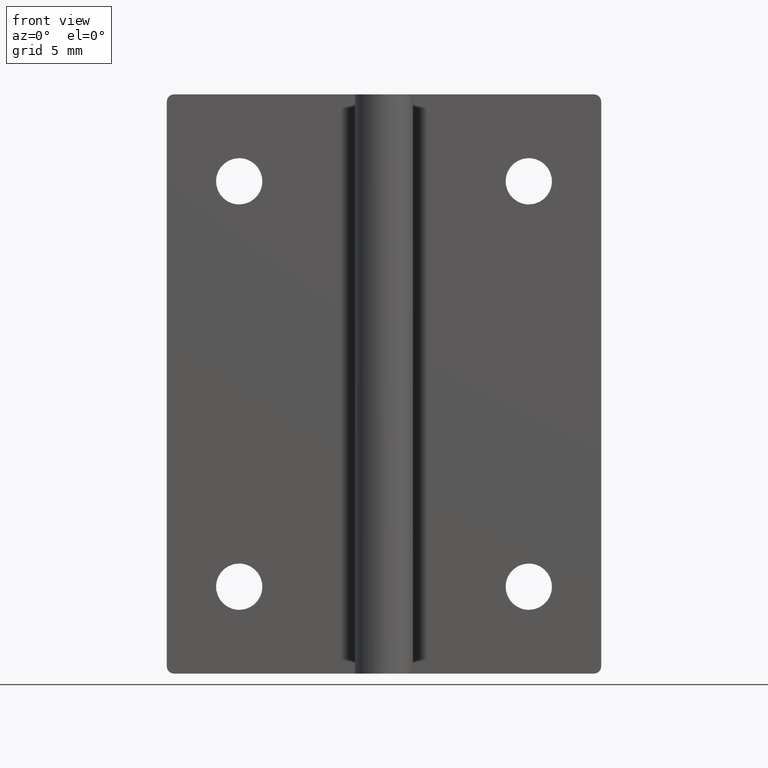
[diagram: clean part render]
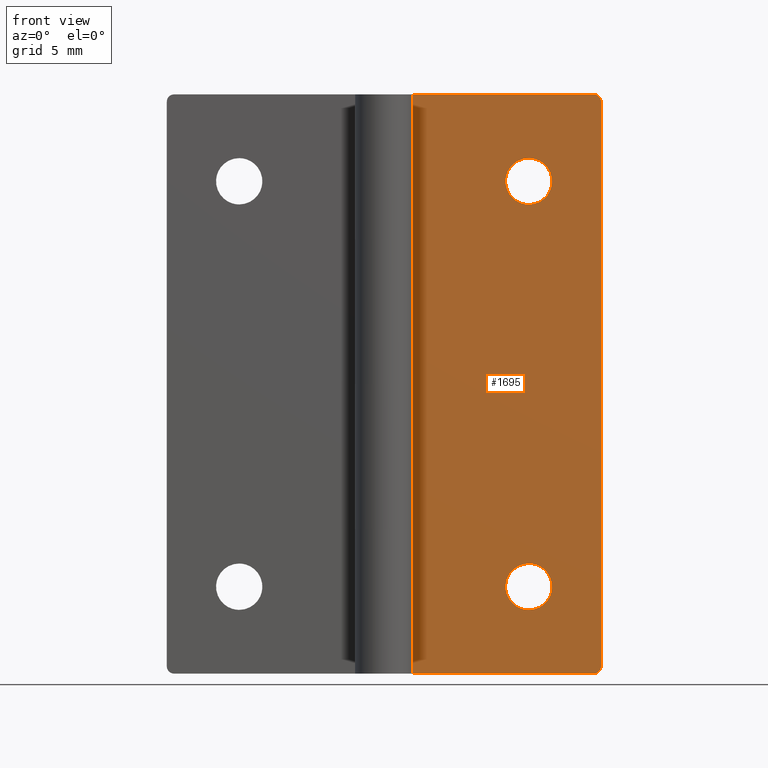
[diagram: same view with one face highlighted and labeled with its STEP entity id]
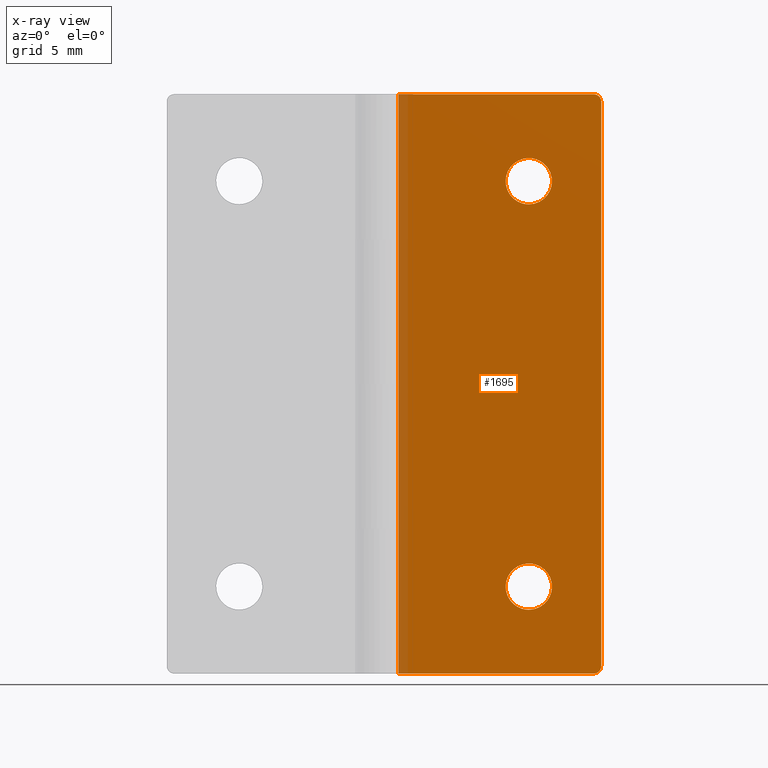
[diagram: x-ray of the same camera — body ghosted, the highlighted face saturated]
A machine part, front view. The second image highlights one B-rep face of the part: STEP entity #1695.
The next image is the same camera in x-ray: the body ghosted, the highlighted face saturated — about 5% of this face is hidden behind the body in this view.
In plain terms, the highlighted face is a freeform B-spline surface patch.
Its self-contained STEP definition (entity closure, byte-faithful):
#313=CARTESIAN_POINT('',(10.0,4.200000999999955,35.600008000000003));
#314=VERTEX_POINT('',#313);
#315=CARTESIAN_POINT('',(8.404932266027803,4.200000999999955,34.125542553174803));
#316=VERTEX_POINT('',#315);
#317=CARTESIAN_POINT('',(10.0,4.200000999999955,35.600008000000003));
#318=CARTESIAN_POINT('',(8.520975213365935,4.200000999999955,35.600007999999995));
#319=CARTESIAN_POINT('',(8.404932266027803,4.200000999999956,34.125542553174803));
#327=(BOUNDED_CURVE()B_SPLINE_CURVE(2,(#317,#318,#319),.UNSPECIFIED.,.F.,.U.)B_SPLINE_CURVE_WITH_KNOTS((3,3),(0.0,0.236331300630564),.UNSPECIFIED.)CURVE()GEOMETRIC_REPRESENTATION_ITEM()RATIONAL_B_SPLINE_CURVE((1.0,0.723120658607778,0.969723356167218))REPRESENTATION_ITEM(''));
#328=EDGE_CURVE('',#314,#316,#327,.T.);
#369=CARTESIAN_POINT('',(11.595067733972201,4.200000999999955,33.874473446825213));
#370=VERTEX_POINT('',#369);
#376=CARTESIAN_POINT('',(11.595067733972201,4.200000999999955,33.874473446825206));
#377=CARTESIAN_POINT('',(11.600000000000000,4.200000999999955,33.937143828777430));
#378=CARTESIAN_POINT('',(11.600000000000000,4.200000999999955,34.000008000000001));
#379=CARTESIAN_POINT('',(11.600000000000001,4.200000999999955,35.600007999999995));
#380=CARTESIAN_POINT('',(10.0,4.200000999999955,35.600008000000003));
#388=(BOUNDED_CURVE()B_SPLINE_CURVE(2,(#376,#377,#378,#379,#380),.UNSPECIFIED.,.F.,.U.)B_SPLINE_CURVE_WITH_KNOTS((3,2,3),(0.736331300630565,0.750000000000000,1.0),.UNSPECIFIED.)CURVE()GEOMETRIC_REPRESENTATION_ITEM()RATIONAL_B_SPLINE_CURVE((0.969723356167220,0.983986122578771,1.0,0.707106781186548,1.0))REPRESENTATION_ITEM(''));
#389=EDGE_CURVE('',#370,#314,#388,.T.);
#412=CARTESIAN_POINT('',(10.0,4.200000999999955,32.400008000000000));
#413=VERTEX_POINT('',#412);
#414=CARTESIAN_POINT('',(8.404932266027803,4.200000999999956,34.125542553174803));
#415=CARTESIAN_POINT('',(8.400000000000000,4.200000999999955,34.062872171222573));
#416=CARTESIAN_POINT('',(8.400000000000000,4.200000999999955,34.000008000000001));
#417=CARTESIAN_POINT('',(8.400000000000000,4.200000999999955,32.400008000000000));
#418=CARTESIAN_POINT('',(10.0,4.200000999999955,32.400008000000000));
#426=(BOUNDED_CURVE()B_SPLINE_CURVE(2,(#414,#415,#416,#417,#418),.UNSPECIFIED.,.F.,.U.)B_SPLINE_CURVE_WITH_KNOTS((3,2,3),(0.236331300630564,0.250000000000000,0.500000000000000),.UNSPECIFIED.)CURVE()GEOMETRIC_REPRESENTATION_ITEM()RATIONAL_B_SPLINE_CURVE((0.969723356167218,0.983986122578770,1.0,0.707106781186548,1.0))REPRESENTATION_ITEM(''));
#427=EDGE_CURVE('',#316,#413,#426,.T.);
#429=CARTESIAN_POINT('',(10.0,4.200000999999955,32.400008000000000));
#430=CARTESIAN_POINT('',(11.479024786634083,4.200000999999954,32.400008000000000));
#431=CARTESIAN_POINT('',(11.595067733972197,4.200000999999955,33.874473446825206));
#439=(BOUNDED_CURVE()B_SPLINE_CURVE(2,(#429,#430,#431),.UNSPECIFIED.,.F.,.U.)B_SPLINE_CURVE_WITH_KNOTS((3,3),(0.500000000000000,0.736331300630566),.UNSPECIFIED.)CURVE()GEOMETRIC_REPRESENTATION_ITEM()RATIONAL_B_SPLINE_CURVE((1.0,0.723120658607776,0.969723356167222))REPRESENTATION_ITEM(''));
#440=EDGE_CURVE('',#413,#370,#439,.T.);
#495=CARTESIAN_POINT('',(10.0,4.200000999999955,7.600000000000000));
#496=VERTEX_POINT('',#495);
#497=CARTESIAN_POINT('',(8.404932266027803,4.200000999999955,6.125534553174797));
#498=VERTEX_POINT('',#497);
#499=CARTESIAN_POINT('',(10.0,4.200000999999955,7.600000000000000));
#500=CARTESIAN_POINT('',(8.520975213365926,4.200000999999955,7.599999999999999));
#501=CARTESIAN_POINT('',(8.404932266027803,4.200000999999955,6.125534553174797));
#509=(BOUNDED_CURVE()B_SPLINE_CURVE(2,(#499,#500,#501),.UNSPECIFIED.,.F.,.U.)B_SPLINE_CURVE_WITH_KNOTS((3,3),(0.0,0.236331300630565),.UNSPECIFIED.)CURVE()GEOMETRIC_REPRESENTATION_ITEM()RATIONAL_B_SPLINE_CURVE((1.0,0.723120658607776,0.969723356167220))REPRESENTATION_ITEM(''));
#510=EDGE_CURVE('',#496,#498,#509,.T.);
#551=CARTESIAN_POINT('',(11.595067733972201,4.200000999999955,5.874465446825203));
#552=VERTEX_POINT('',#551);
#558=CARTESIAN_POINT('',(11.595067733972202,4.200000999999956,5.874465446825203));
#559=CARTESIAN_POINT('',(11.600000000000005,4.200000999999955,5.937135828777437));
#560=CARTESIAN_POINT('',(11.600000000000000,4.200000999999955,6.0));
#561=CARTESIAN_POINT('',(11.600000000000001,4.200000999999955,7.600000000000000));
#562=CARTESIAN_POINT('',(10.0,4.200000999999955,7.600000000000000));
#570=(BOUNDED_CURVE()B_SPLINE_CURVE(2,(#558,#559,#560,#561,#562),.UNSPECIFIED.,.F.,.U.)B_SPLINE_CURVE_WITH_KNOTS((3,2,3),(0.736331300630565,0.750000000000000,1.0),.UNSPECIFIED.)CURVE()GEOMETRIC_REPRESENTATION_ITEM()RATIONAL_B_SPLINE_CURVE((0.969723356167220,0.983986122578771,1.0,0.707106781186548,1.0))REPRESENTATION_ITEM(''));
#571=EDGE_CURVE('',#552,#496,#570,.T.);
#594=CARTESIAN_POINT('',(10.0,4.200000999999955,4.400000000000000));
#595=VERTEX_POINT('',#594);
#596=CARTESIAN_POINT('',(8.404932266027803,4.200000999999956,6.125534553174797));
#597=CARTESIAN_POINT('',(8.400000000000000,4.200000999999955,6.062864171222563));
#598=CARTESIAN_POINT('',(8.400000000000000,4.200000999999955,6.0));
#599=CARTESIAN_POINT('',(8.400000000000000,4.200000999999955,4.400000000000001));
#600=CARTESIAN_POINT('',(10.0,4.200000999999955,4.400000000000000));
#608=(BOUNDED_CURVE()B_SPLINE_CURVE(2,(#596,#597,#598,#599,#600),.UNSPECIFIED.,.F.,.U.)B_SPLINE_CURVE_WITH_KNOTS((3,2,3),(0.236331300630565,0.250000000000000,0.500000000000000),.UNSPECIFIED.)CURVE()GEOMETRIC_REPRESENTATION_ITEM()RATIONAL_B_SPLINE_CURVE((0.969723356167220,0.983986122578771,1.0,0.707106781186548,1.0))REPRESENTATION_ITEM(''));
#609=EDGE_CURVE('',#498,#595,#608,.T.);
#611=CARTESIAN_POINT('',(10.0,4.200000999999955,4.400000000000000));
#612=CARTESIAN_POINT('',(11.479024786634083,4.200000999999954,4.400000000000001));
#613=CARTESIAN_POINT('',(11.595067733972197,4.200000999999955,5.874465446825203));
#621=(BOUNDED_CURVE()B_SPLINE_CURVE(2,(#611,#612,#613),.UNSPECIFIED.,.F.,.U.)B_SPLINE_CURVE_WITH_KNOTS((3,3),(0.500000000000000,0.736331300630566),.UNSPECIFIED.)CURVE()GEOMETRIC_REPRESENTATION_ITEM()RATIONAL_B_SPLINE_CURVE((1.0,0.723120658607776,0.969723356167222))REPRESENTATION_ITEM(''));
#622=EDGE_CURVE('',#595,#552,#621,.T.);
#1073=CARTESIAN_POINT('',(1.000005000000000,4.200001000000000,30.0));
#1074=VERTEX_POINT('',#1073);
#1125=CARTESIAN_POINT('',(1.000005000000000,4.200001000000000,40.000007999999987));
#1126=VERTEX_POINT('',#1125);
#1138=CARTESIAN_POINT('',(1.000005000000000,4.200001000000000,40.000007999999987));
#1139=CARTESIAN_POINT('',(1.000005000000000,4.200001000000000,30.0));
#1140=QUASI_UNIFORM_CURVE('',1,(#1138,#1139),.UNSPECIFIED.,.F.,.U.);
#1141=EDGE_CURVE('',#1126,#1074,#1140,.T.);
#1174=CARTESIAN_POINT('',(1.000005000000000,4.200001000000000,9.999999999999799));
#1175=VERTEX_POINT('',#1174);
#1256=CARTESIAN_POINT('',(1.000005000000000,4.200001000000000,20.0));
#1257=VERTEX_POINT('',#1256);
#1304=CARTESIAN_POINT('',(1.000005000000000,4.200001000000000,20.0));
#1305=CARTESIAN_POINT('',(1.000005000000000,4.200001000000000,9.999999999999799));
#1306=QUASI_UNIFORM_CURVE('',1,(#1304,#1305),.UNSPECIFIED.,.F.,.U.);
#1307=EDGE_CURVE('',#1257,#1175,#1306,.T.);
#1371=CARTESIAN_POINT('',(15.0,4.200001000000000,39.500008000000001));
#1372=VERTEX_POINT('',#1371);
#1373=CARTESIAN_POINT('',(14.500000000000000,4.200001000000000,40.000007999999987));
#1374=VERTEX_POINT('',#1373);
#1375=CARTESIAN_POINT('',(15.0,4.200001000000000,39.500008000000001));
#1376=CARTESIAN_POINT('',(15.000000000000009,4.200001000000000,40.000008000000015));
#1377=CARTESIAN_POINT('',(14.500000000000000,4.200001000000000,40.000008000000001));
#1385=(BOUNDED_CURVE()B_SPLINE_CURVE(2,(#1375,#1376,#1377),.UNSPECIFIED.,.F.,.U.)CURVE()GEOMETRIC_REPRESENTATION_ITEM()QUASI_UNIFORM_CURVE()RATIONAL_B_SPLINE_CURVE((1.0,0.707106781186548,1.0))REPRESENTATION_ITEM(''));
#1386=EDGE_CURVE('',#1372,#1374,#1385,.T.);
#1432=CARTESIAN_POINT('',(14.500000000000000,4.200001000000000,0.0));
#1433=VERTEX_POINT('',#1432);
#1434=CARTESIAN_POINT('',(15.0,4.200001000000000,0.499999999999945));
#1435=VERTEX_POINT('',#1434);
#1436=CARTESIAN_POINT('',(14.500000000000000,4.200001000000000,0.0));
#1437=CARTESIAN_POINT('',(15.000000000000009,4.200001000000000,-5.496905E-014));
#1438=CARTESIAN_POINT('',(15.0,4.200001000000000,0.499999999999945));
#1446=(BOUNDED_CURVE()B_SPLINE_CURVE(2,(#1436,#1437,#1438),.UNSPECIFIED.,.F.,.U.)CURVE()GEOMETRIC_REPRESENTATION_ITEM()QUASI_UNIFORM_CURVE()RATIONAL_B_SPLINE_CURVE((1.0,0.707106781186548,1.0))REPRESENTATION_ITEM(''));
#1447=EDGE_CURVE('',#1433,#1435,#1446,.T.);
#1496=CARTESIAN_POINT('',(1.000005000000000,4.200001000000000,0.0));
#1497=VERTEX_POINT('',#1496);
#1498=CARTESIAN_POINT('',(1.000005000000000,4.200001000000000,0.0));
#1499=CARTESIAN_POINT('',(14.500000000000000,4.200001000000000,0.0));
#1500=QUASI_UNIFORM_CURVE('',1,(#1498,#1499),.UNSPECIFIED.,.F.,.U.);
#1501=EDGE_CURVE('',#1497,#1433,#1500,.T.);
#1553=CARTESIAN_POINT('',(1.000005000000000,4.200001000000000,40.000007999999987));
#1554=CARTESIAN_POINT('',(14.500000000000000,4.200001000000000,40.000007999999987));
#1555=QUASI_UNIFORM_CURVE('',1,(#1553,#1554),.UNSPECIFIED.,.F.,.U.);
#1556=EDGE_CURVE('',#1126,#1374,#1555,.T.);
#1567=CARTESIAN_POINT('',(1.000005000000000,4.200001000000000,9.999999999999799));
#1568=CARTESIAN_POINT('',(1.000005000000000,4.200001000000000,0.0));
#1569=QUASI_UNIFORM_CURVE('',1,(#1567,#1568),.UNSPECIFIED.,.F.,.U.);
#1570=EDGE_CURVE('',#1175,#1497,#1569,.T.);
#1648=CARTESIAN_POINT('',(15.0,4.200001000000000,39.500008000000001));
#1649=CARTESIAN_POINT('',(15.0,4.200001000000000,0.499999999999945));
#1650=QUASI_UNIFORM_CURVE('',1,(#1648,#1649),.UNSPECIFIED.,.F.,.U.);
#1651=EDGE_CURVE('',#1372,#1435,#1650,.T.);
#1663=CARTESIAN_POINT('',(0.300705276884708,4.200001000000000,-1.998000322072222));
#1664=CARTESIAN_POINT('',(0.300705276884708,4.200001000000000,41.998009394956043));
#1665=CARTESIAN_POINT('',(15.699300098624420,4.200001000000000,-1.998000322072222));
#1666=CARTESIAN_POINT('',(15.699300098624420,4.200001000000000,41.998009394956043));
#1667=B_SPLINE_SURFACE_WITH_KNOTS('',1,1,((#1663,#1665),(#1664,#1666)),.UNSPECIFIED.,.F.,.F.,.U.,(2,2),(2,2),(0.0,43.996009717028272),(0.0,15.398594821739710),.UNSPECIFIED.);
#1668=ORIENTED_EDGE('',*,*,#1501,.T.);
#1669=ORIENTED_EDGE('',*,*,#1447,.T.);
#1670=ORIENTED_EDGE('',*,*,#1651,.F.);
#1671=ORIENTED_EDGE('',*,*,#1386,.T.);
#1672=ORIENTED_EDGE('',*,*,#1556,.F.);
#1673=ORIENTED_EDGE('',*,*,#1141,.T.);
#1674=CARTESIAN_POINT('',(1.000005000000000,4.200001000000000,30.0));
#1675=CARTESIAN_POINT('',(1.000005000000000,4.200001000000000,20.0));
#1676=QUASI_UNIFORM_CURVE('',1,(#1674,#1675),.UNSPECIFIED.,.F.,.U.);
#1677=EDGE_CURVE('',#1074,#1257,#1676,.T.);
#1678=ORIENTED_EDGE('',*,*,#1677,.T.);
#1679=ORIENTED_EDGE('',*,*,#1307,.T.);
#1680=ORIENTED_EDGE('',*,*,#1570,.T.);
#1681=EDGE_LOOP('',(#1668,#1669,#1670,#1671,#1672,#1673,#1678,#1679,#1680));
#1682=FACE_OUTER_BOUND('',#1681,.T.);
#1683=ORIENTED_EDGE('',*,*,#622,.F.);
#1684=ORIENTED_EDGE('',*,*,#609,.F.);
#1685=ORIENTED_EDGE('',*,*,#510,.F.);
#1686=ORIENTED_EDGE('',*,*,#571,.F.);
#1687=EDGE_LOOP('',(#1683,#1684,#1685,#1686));
#1688=FACE_BOUND('',#1687,.T.);
#1689=ORIENTED_EDGE('',*,*,#440,.F.);
#1690=ORIENTED_EDGE('',*,*,#427,.F.);
#1691=ORIENTED_EDGE('',*,*,#328,.F.);
#1692=ORIENTED_EDGE('',*,*,#389,.F.);
#1693=EDGE_LOOP('',(#1689,#1690,#1691,#1692));
#1694=FACE_BOUND('',#1693,.T.);
#1695=ADVANCED_FACE('',(#1682,#1688,#1694),#1667,.F.);